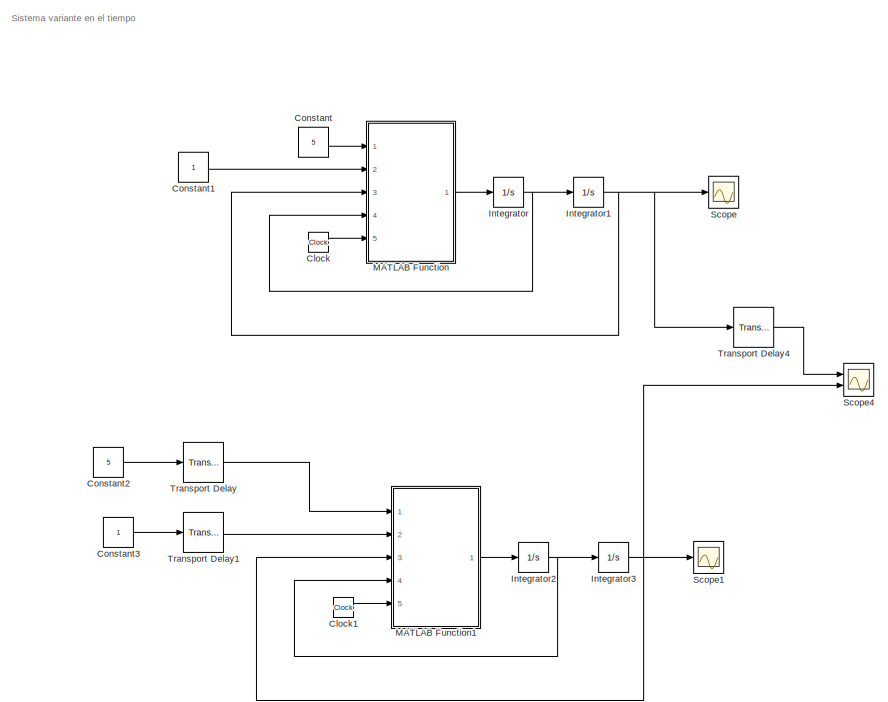
[diagram: root canvas - part 1/2, left side, full height]
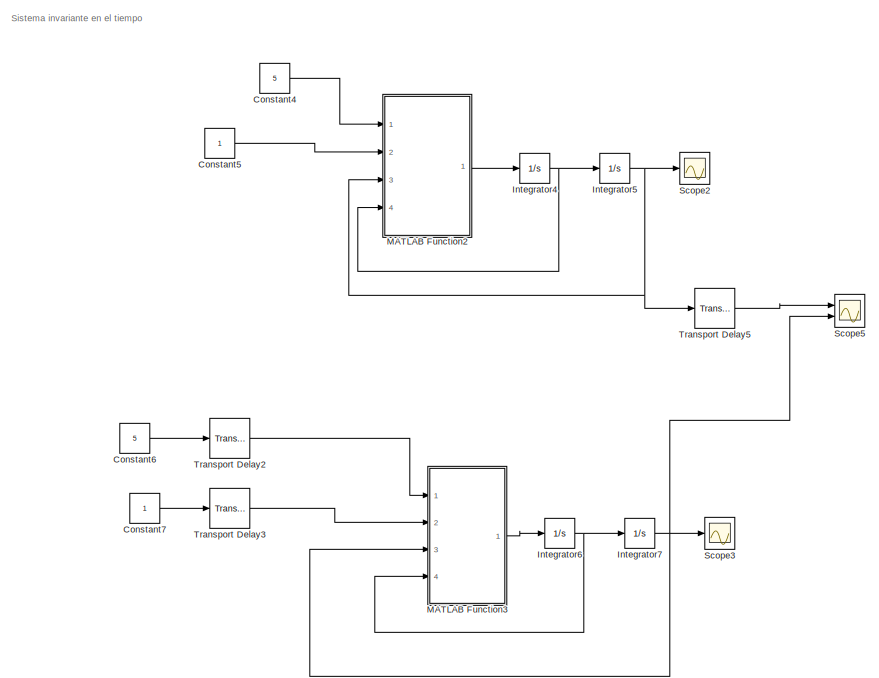
[diagram: root canvas - part 2/2, right side, full height]
MODEL slx_344d54491349
KIND model
CONFIG AbsTol = auto
CONFIG EnableMultiTasking = off
CONFIG FixedStep = auto
CONFIG MaxStep = 1e-2
CONFIG MinStep = auto
CONFIG RelTol = 1e-3
CONFIG SampleTimeConstraint = Unconstrained
CONFIG SolverName = VariableStepAuto
CONFIG StartTime = 0.0
CONFIG StopTime = 5
BLOCK [Clock] Clock
BLOCK [Clock] Clock1
BLOCK [Constant] Constant
  Value = 5
BLOCK [Constant] Constant1
BLOCK [Constant] Constant2
  Value = 5
BLOCK [Constant] Constant3
BLOCK [Constant] Constant4
  Value = 5
BLOCK [Constant] Constant5
BLOCK [Constant] Constant6
  Value = 5
BLOCK [Constant] Constant7
BLOCK [Integrator] Integrator
  Ports = [1, 1]
BLOCK [Integrator] Integrator1
  Ports = [1, 1]
BLOCK [Integrator] Integrator2
  Ports = [1, 1]
BLOCK [Integrator] Integrator3
  Ports = [1, 1]
BLOCK [Integrator] Integrator4
  Ports = [1, 1]
BLOCK [Integrator] Integrator5
  Ports = [1, 1]
BLOCK [Integrator] Integrator6
  Ports = [1, 1]
BLOCK [Integrator] Integrator7
  Ports = [1, 1]
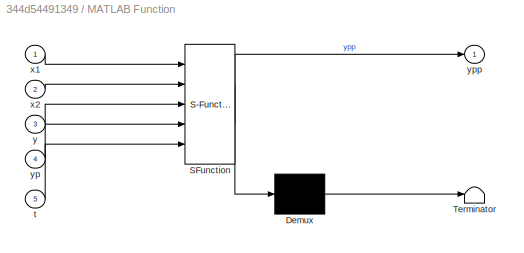
BLOCK [SubSystem] MATLAB Function
  ErrorFcn = Stateflow.Translate.translate
  PermitHierarchicalResolution = ExplicitOnly
  Ports = [5, 1]
  RequestExecContextInheritance = off
  SFBlockType = MATLAB Function
  TreatAsAtomicUnit = on
BLOCK [Demux] MATLAB Function/ Demux 
  Outputs = 1
  Ports = [1, 1]
BLOCK [S-Function] MATLAB Function/ SFunction 
  EnableBusSupport = on
  FunctionName = sf_sfun
  PortCounts = [5 2]
  Ports = [5, 2]
  SFcnIsStateOwnerBlock = off
  SFunctionDeploymentMode = off
  Tag = Stateflow S-Function 2
BLOCK [Terminator] MATLAB Function/ Terminator 
BLOCK [Inport] MATLAB Function/t
  Port = 5
BLOCK [Inport] MATLAB Function/x1
BLOCK [Inport] MATLAB Function/x2
  Port = 2
BLOCK [Inport] MATLAB Function/y
  Port = 3
BLOCK [Inport] MATLAB Function/yp
  Port = 4
BLOCK [Outport] MATLAB Function/ypp
  VectorParamsAs1DForOutWhenUnconnected = off
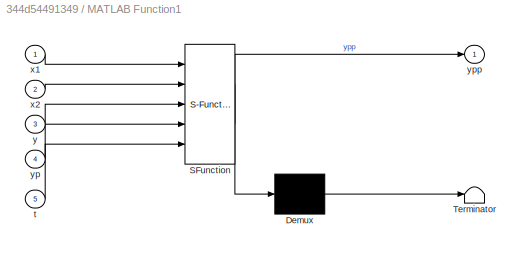
BLOCK [SubSystem] MATLAB Function1
  ErrorFcn = Stateflow.Translate.translate
  PermitHierarchicalResolution = ExplicitOnly
  Ports = [5, 1]
  RequestExecContextInheritance = off
  SFBlockType = MATLAB Function
  TreatAsAtomicUnit = on
BLOCK [Demux] MATLAB Function1/ Demux 
  Outputs = 1
  Ports = [1, 1]
BLOCK [S-Function] MATLAB Function1/ SFunction 
  EnableBusSupport = on
  FunctionName = sf_sfun
  PortCounts = [5 2]
  Ports = [5, 2]
  SFcnIsStateOwnerBlock = off
  SFunctionDeploymentMode = off
  Tag = Stateflow S-Function 1
BLOCK [Terminator] MATLAB Function1/ Terminator 
BLOCK [Inport] MATLAB Function1/t
  Port = 5
BLOCK [Inport] MATLAB Function1/x1
BLOCK [Inport] MATLAB Function1/x2
  Port = 2
BLOCK [Inport] MATLAB Function1/y
  Port = 3
BLOCK [Inport] MATLAB Function1/yp
  Port = 4
BLOCK [Outport] MATLAB Function1/ypp
  VectorParamsAs1DForOutWhenUnconnected = off
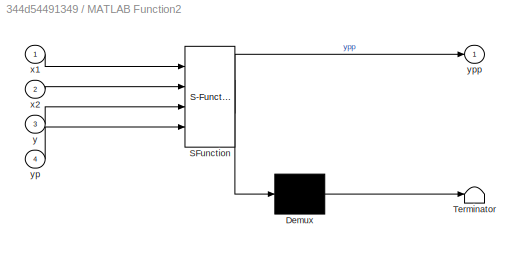
BLOCK [SubSystem] MATLAB Function2
  ErrorFcn = Stateflow.Translate.translate
  PermitHierarchicalResolution = ExplicitOnly
  Ports = [4, 1]
  RequestExecContextInheritance = off
  SFBlockType = MATLAB Function
  TreatAsAtomicUnit = on
BLOCK [Demux] MATLAB Function2/ Demux 
  Outputs = 1
  Ports = [1, 1]
BLOCK [S-Function] MATLAB Function2/ SFunction 
  EnableBusSupport = on
  FunctionName = sf_sfun
  PortCounts = [4 2]
  Ports = [4, 2]
  SFcnIsStateOwnerBlock = off
  SFunctionDeploymentMode = off
  Tag = Stateflow S-Function 3
BLOCK [Terminator] MATLAB Function2/ Terminator 
BLOCK [Inport] MATLAB Function2/x1
BLOCK [Inport] MATLAB Function2/x2
  Port = 2
BLOCK [Inport] MATLAB Function2/y
  Port = 3
BLOCK [Inport] MATLAB Function2/yp
  Port = 4
BLOCK [Outport] MATLAB Function2/ypp
  VectorParamsAs1DForOutWhenUnconnected = off
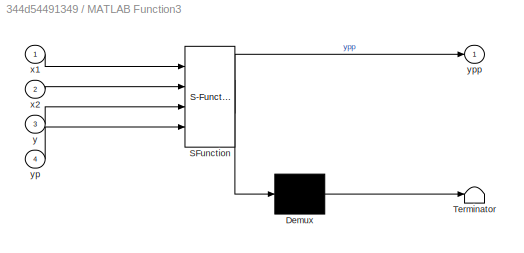
BLOCK [SubSystem] MATLAB Function3
  ErrorFcn = Stateflow.Translate.translate
  PermitHierarchicalResolution = ExplicitOnly
  Ports = [4, 1]
  RequestExecContextInheritance = off
  SFBlockType = MATLAB Function
  TreatAsAtomicUnit = on
BLOCK [Demux] MATLAB Function3/ Demux 
  Outputs = 1
  Ports = [1, 1]
BLOCK [S-Function] MATLAB Function3/ SFunction 
  EnableBusSupport = on
  FunctionName = sf_sfun
  PortCounts = [4 2]
  Ports = [4, 2]
  SFcnIsStateOwnerBlock = off
  SFunctionDeploymentMode = off
  Tag = Stateflow S-Function 4
BLOCK [Terminator] MATLAB Function3/ Terminator 
BLOCK [Inport] MATLAB Function3/x1
BLOCK [Inport] MATLAB Function3/x2
  Port = 2
BLOCK [Inport] MATLAB Function3/y
  Port = 3
BLOCK [Inport] MATLAB Function3/yp
  Port = 4
BLOCK [Outport] MATLAB Function3/ypp
  VectorParamsAs1DForOutWhenUnconnected = off
BLOCK [Scope] Scope
  Floating = off
  NumInputPorts = 1
  Ports = [1]
  ScopeSpecificationString = Simulink.scopes.TimeScopeBlockCfg('CurrentConfiguration', extmgr.ConfigurationSet(extmgr.Configuration('Core','General UI',true),extmgr.Configuration('Core','Source UI',true),extmgr.Configuration('Sources','WiredSimulink',true),extmgr.Configuration('Visuals','Time Domain',true,'SerializedDisplays',{struct('MinYLimReal','-0.15759','MaxYLimReal','1.41828','YLabelReal','','MinYLimMag','0.00000','MaxY...<+1406ch>
BLOCK [Scope] Scope1
  Floating = off
  NumInputPorts = 1
  Ports = [1]
  ScopeSpecificationString = Simulink.scopes.TimeScopeBlockCfg('CurrentConfiguration', extmgr.ConfigurationSet(extmgr.Configuration('Core','General UI',true),extmgr.Configuration('Core','Source UI',true),extmgr.Configuration('Sources','WiredSimulink',true,'DataLoggingVariableName','ScopeData1'),extmgr.Configuration('Visuals','Time Domain',true,'SerializedDisplays',{struct('MinYLimReal','-0.15063','MaxYLimReal','1.35566','YLab...<+1403ch>
BLOCK [Scope] Scope2
  Floating = off
  NumInputPorts = 1
  Ports = [1]
  ScopeSpecificationString = Simulink.scopes.TimeScopeBlockCfg('CurrentConfiguration', extmgr.ConfigurationSet(extmgr.Configuration('Core','General UI',true),extmgr.Configuration('Core','Source UI',true),extmgr.Configuration('Sources','WiredSimulink',true,'DataLoggingVariableName','ScopeData2'),extmgr.Configuration('Visuals','Time Domain',true,'SerializedDisplays',{struct('MinYLimReal','-0.0652','MaxYLimReal','0.58681','YLabe...<+1399ch>
BLOCK [Scope] Scope3
  Floating = off
  NumInputPorts = 1
  Ports = [1]
  ScopeSpecificationString = Simulink.scopes.TimeScopeBlockCfg('CurrentConfiguration', extmgr.ConfigurationSet(extmgr.Configuration('Core','General UI',true),extmgr.Configuration('Core','Source UI',true),extmgr.Configuration('Sources','WiredSimulink',true,'DataLoggingVariableName','ScopeData3'),extmgr.Configuration('Visuals','Time Domain',true,'SerializedDisplays',{struct('MinYLimReal','-0.0652','MaxYLimReal','0.58681','YLabe...<+1401ch>
BLOCK [Scope] Scope4
  Floating = off
  NumInputPorts = 2
  Ports = [2]
  ScopeSpecificationString = Simulink.scopes.TimeScopeBlockCfg('CurrentConfiguration', extmgr.ConfigurationSet(extmgr.Configuration('Core','General UI',true),extmgr.Configuration('Core','Source UI',true),extmgr.Configuration('Sources','WiredSimulink',true,'DataLoggingVariableName','ScopeData4'),extmgr.Configuration('Visuals','Time Domain',true,'SerializedDisplays',{struct('MinYLimReal','-0.1576','MaxYLimReal','1.4184','YLabel...<+1414ch>
BLOCK [Scope] Scope5
  Floating = off
  NumInputPorts = 2
  Ports = [2]
  ScopeSpecificationString = Simulink.scopes.TimeScopeBlockCfg('CurrentConfiguration', extmgr.ConfigurationSet(extmgr.Configuration('Core','General UI',true),extmgr.Configuration('Core','Source UI',true),extmgr.Configuration('Sources','WiredSimulink',true,'DataLoggingVariableName','ScopeData5'),extmgr.Configuration('Visuals','Time Domain',true,'SerializedDisplays',{struct('MinYLimReal','-0.06518','MaxYLimReal','0.58663','YLab...<+1509ch>
BLOCK [TransportDelay] Transport Delay
  Ports = [1, 1]
BLOCK [TransportDelay] Transport Delay1
  Ports = [1, 1]
BLOCK [TransportDelay] Transport Delay2
  Ports = [1, 1]
BLOCK [TransportDelay] Transport Delay3
  Ports = [1, 1]
BLOCK [TransportDelay] Transport Delay4
  Ports = [1, 1]
BLOCK [TransportDelay] Transport Delay5
  Ports = [1, 1]
ANNOTATION (root): Sistema invariante en el tiempo
ANNOTATION (root): Sistema variante en el tiempo
LINE Clock1:1 -> MATLAB Function1:5
LINE Clock:1 -> MATLAB Function:5
LINE Constant1:1 -> MATLAB Function:2
LINE Constant2:1 -> Transport Delay:1
LINE Constant3:1 -> Transport Delay1:1
LINE Constant4:1 -> MATLAB Function2:1
LINE Constant5:1 -> MATLAB Function2:2
LINE Constant6:1 -> Transport Delay2:1
LINE Constant7:1 -> Transport Delay3:1
LINE Constant:1 -> MATLAB Function:1
NET Integrator1:1 -> MATLAB Function:3, Scope:1, Transport Delay4:1
NET Integrator2:1 -> Integrator3:1, MATLAB Function1:4
NET Integrator3:1 -> MATLAB Function1:3, Scope1:1, Scope4:2
NET Integrator4:1 -> Integrator5:1, MATLAB Function2:4
NET Integrator5:1 -> MATLAB Function2:3, Scope2:1, Transport Delay5:1
NET Integrator6:1 -> Integrator7:1, MATLAB Function3:4
NET Integrator7:1 -> MATLAB Function3:3, Scope3:1, Scope5:2
NET Integrator:1 -> Integrator1:1, MATLAB Function:4
LINE MATLAB Function1:1 -> Integrator2:1
LINE MATLAB Function2:1 -> Integrator4:1
LINE MATLAB Function3:1 -> Integrator6:1
LINE MATLAB Function:1 -> Integrator:1
LINE Transport Delay1:1 -> MATLAB Function1:2
LINE Transport Delay2:1 -> MATLAB Function3:1
LINE Transport Delay3:1 -> MATLAB Function3:2
LINE Transport Delay4:1 -> Scope4:1
LINE Transport Delay5:1 -> Scope5:1
LINE Transport Delay:1 -> MATLAB Function1:1
note: NET lines group one-source signal fan-out (src -> all destinations, sorted); 1:1 wires keep LINE
CHART MATLAB Function1 states=1 transitions=1
  STATE_LABEL 'eML_blk_kernel()'
  STATE_LABEL 'SCRIPT:\nfunction ypp = fcn(x1,x2,y,yp,t)\n\nypp =2*x1-6*exp(-2*t)*x2-8*y-4*t*yp;\n'
CHART MATLAB Function states=1 transitions=1
  STATE_LABEL 'eML_blk_kernel()'
  STATE_LABEL 'SCRIPT:\nfunction ypp = fcn(x1,x2,y,yp,t)\n\nypp =2*x1-6*exp(-2*t)*x2-8*y-4*t*yp;\n'
CHART MATLAB Function2 states=1 transitions=1
  STATE_LABEL 'eML_blk_kernel()'
  STATE_LABEL 'SCRIPT:\nfunction ypp = fcn(x1,x2,y,yp)\n\nypp =2*x1-6*x2-8*y-4*yp;\n'
CHART MATLAB Function3 states=1 transitions=1
  STATE_LABEL 'eML_blk_kernel()'
  STATE_LABEL 'SCRIPT:\nfunction ypp = fcn(x1,x2,y,yp)\n\nypp =2*x1-6*x2-8*y-4*yp;\n'
CHART  states=0 transitions=0
CHART  states=0 transitions=0
CHART  states=0 transitions=0
CHART  states=0 transitions=0
